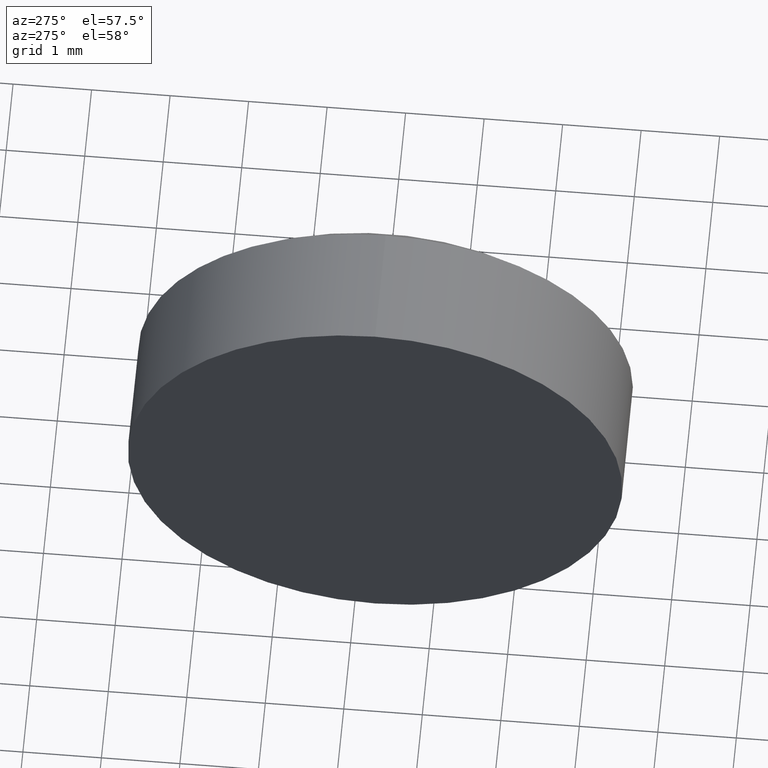
[diagram: clean part render]
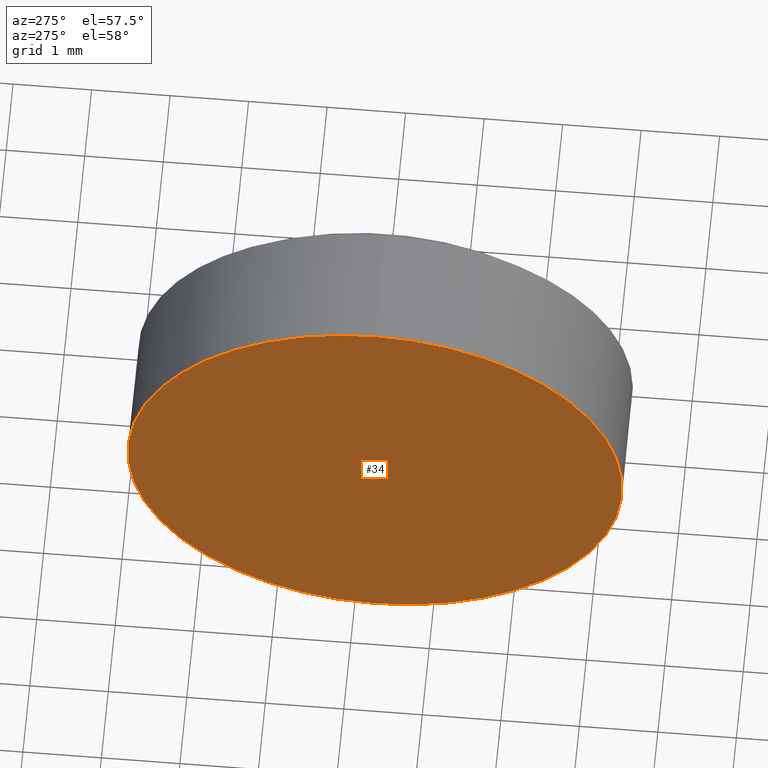
[diagram: same view with one face highlighted and labeled with its STEP entity id]
A machine part, auxiliary view. The second image highlights one B-rep face of the part: STEP entity #34.
In plain terms, the highlighted planar face has unit normal (1, 0, 0).
Its self-contained STEP definition (entity closure, byte-faithful):
#3 = VERTEX_POINT ( 'NONE', #169 ) ;
#8 = DIRECTION ( 'NONE',  ( 1.000000000000000000, 0.0000000000000000000, 0.0000000000000000000 ) ) ;
#11 = CARTESIAN_POINT ( 'NONE',  ( 411.5273895783834600, -154.2646771104562600, 3.150000000000013700 ) ) ;
#16 = ORIENTED_EDGE ( 'NONE', *, *, #181, .T. ) ;
#18 = EDGE_CURVE ( 'NONE', #48, #3, #41, .T. ) ;
#34 = ADVANCED_FACE ( 'NONE', ( #68 ), #155, .F. ) ;
#41 = CIRCLE ( 'NONE', #61, 3.150000000000013700 ) ;
#48 = VERTEX_POINT ( 'NONE', #11 ) ;
#60 = AXIS2_PLACEMENT_3D ( 'NONE', #128, #140, #82 ) ;
#61 = AXIS2_PLACEMENT_3D ( 'NONE', #76, #184, #134 ) ;
#68 = FACE_OUTER_BOUND ( 'NONE', #131, .T. ) ;
#75 = CIRCLE ( 'NONE', #60, 3.150000000000013700 ) ;
#76 = CARTESIAN_POINT ( 'NONE',  ( 411.5273895783834600, -154.2646771104562600, 0.0000000000000000000 ) ) ;
#82 = DIRECTION ( 'NONE',  ( 0.0000000000000000000, 0.0000000000000000000, 1.000000000000000000 ) ) ;
#88 = CARTESIAN_POINT ( 'NONE',  ( 411.5273895783834600, -154.2646771104562600, 0.0000000000000000000 ) ) ;
#90 = DIRECTION ( 'NONE',  ( 0.0000000000000000000, 0.0000000000000000000, -1.000000000000000000 ) ) ;
#120 = ORIENTED_EDGE ( 'NONE', *, *, #18, .T. ) ;
#125 = AXIS2_PLACEMENT_3D ( 'NONE', #88, #8, #90 ) ;
#128 = CARTESIAN_POINT ( 'NONE',  ( 411.5273895783834600, -154.2646771104562600, 0.0000000000000000000 ) ) ;
#131 = EDGE_LOOP ( 'NONE', ( #120, #16 ) ) ;
#134 = DIRECTION ( 'NONE',  ( 0.0000000000000000000, 0.0000000000000000000, 1.000000000000000000 ) ) ;
#140 = DIRECTION ( 'NONE',  ( -1.000000000000000000, -0.0000000000000000000, -0.0000000000000000000 ) ) ;
#155 = PLANE ( 'NONE',  #125 ) ;
#169 = CARTESIAN_POINT ( 'NONE',  ( 411.5273895783834600, -154.2646771104562600, -3.150000000000013700 ) ) ;
#181 = EDGE_CURVE ( 'NONE', #3, #48, #75, .T. ) ;
#184 = DIRECTION ( 'NONE',  ( -1.000000000000000000, -0.0000000000000000000, -0.0000000000000000000 ) ) ;